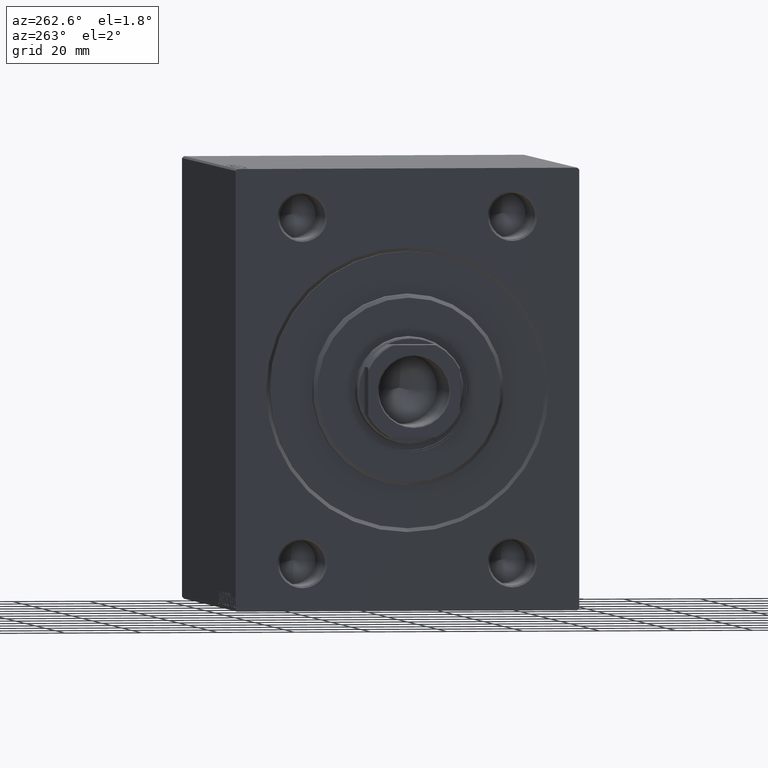
[diagram: clean part render]
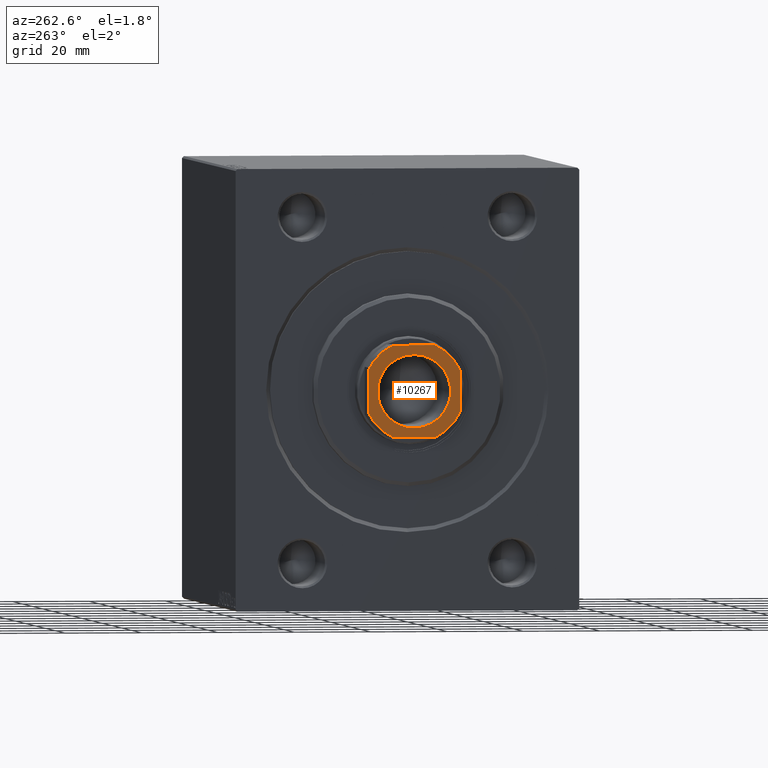
[diagram: same view with one face highlighted and labeled with its STEP entity id]
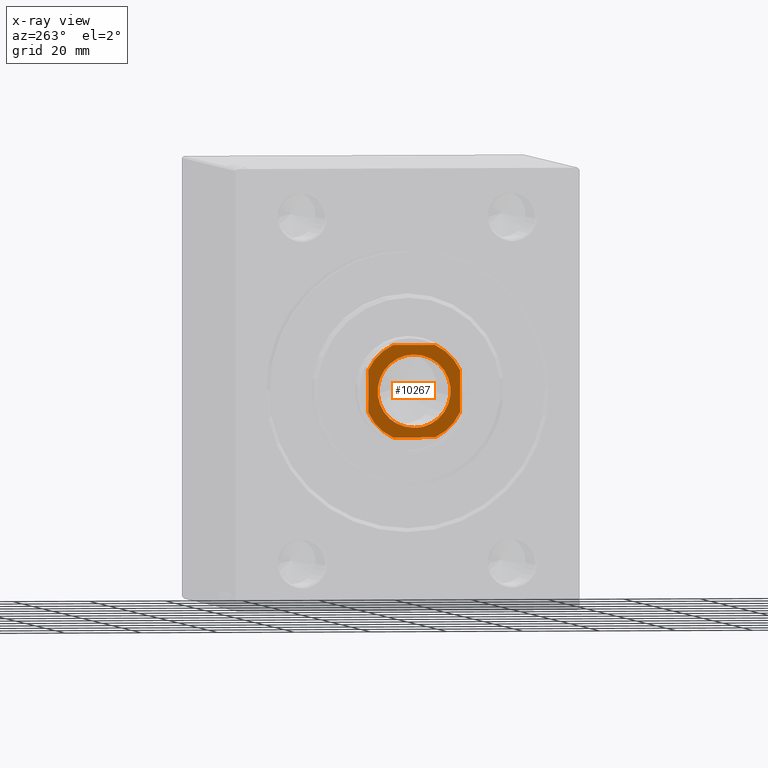
[diagram: x-ray of the same camera — body ghosted, the highlighted face saturated]
A machine part, auxiliary view. The second image highlights one B-rep face of the part: STEP entity #10267.
The next image is the same camera in x-ray: the body ghosted, the highlighted face saturated — about 0% of this face is hidden behind the body in this view.
In plain terms, the highlighted planar face has unit normal (-1, 0, 0).
Its self-contained STEP definition (entity closure, byte-faithful):
#175 = VERTEX_POINT ( 'NONE', #25458 ) ;
#362 = EDGE_CURVE ( 'NONE', #15461, #9041, #7316, .T. ) ;
#371 = DIRECTION ( 'NONE',  ( -0.000000000000000000, 0.000000000000000000, 1.000000000000000000 ) ) ;
#511 = CIRCLE ( 'NONE', #25501, 13.20000000000000107 ) ;
#1007 = EDGE_CURVE ( 'NONE', #21035, #15361, #22891, .T. ) ;
#1114 = CARTESIAN_POINT ( 'NONE',  ( 5.499090833947013479, 11.99999999999999645, 104.0000000000000142 ) ) ;
#2367 = CIRCLE ( 'NONE', #32331, 13.20000000000002238 ) ;
#2435 = VERTEX_POINT ( 'NONE', #8173 ) ;
#2909 = VERTEX_POINT ( 'NONE', #19532 ) ;
#4048 = CARTESIAN_POINT ( 'NONE',  ( -12.00000000000000355, 11.99999999999999645, 104.0000000000000142 ) ) ;
#4295 = EDGE_CURVE ( 'NONE', #38079, #21072, #21712, .T. ) ;
#4955 = CARTESIAN_POINT ( 'NONE',  ( -11.99999999999999822, -12.00000000000000355, 104.0000000000000142 ) ) ;
#5530 = CIRCLE ( 'NONE', #40468, 13.19999999999999929 ) ;
#7316 = LINE ( 'NONE', #11108, #12846 ) ;
#7362 = LINE ( 'NONE', #20988, #32412 ) ;
#7604 = CIRCLE ( 'NONE', #32570, 13.20000000000002238 ) ;
#8030 = DIRECTION ( 'NONE',  ( -0.000000000000000000, 0.000000000000000000, 1.000000000000000000 ) ) ;
#8071 = VERTEX_POINT ( 'NONE', #38842 ) ;
#8173 = CARTESIAN_POINT ( 'NONE',  ( 11.99999999999999645, 5.499090833947010815, 104.0000000000000142 ) ) ;
#8699 = VECTOR ( 'NONE', #15009, 1000.000000000000000 ) ;
#8838 = DIRECTION ( 'NONE',  ( 1.000000000000000000, 0.000000000000000000, 0.000000000000000000 ) ) ;
#9041 = VERTEX_POINT ( 'NONE', #41815 ) ;
#9348 = DIRECTION ( 'NONE',  ( 0.000000000000000000, -0.000000000000000000, -1.000000000000000000 ) ) ;
#10267 = ADVANCED_FACE ( 'NONE', ( #21155, #41940 ), #14907, .T. ) ;
#10705 = EDGE_CURVE ( 'NONE', #175, #2435, #7362, .T. ) ;
#11108 = CARTESIAN_POINT ( 'NONE',  ( -12.00000000000000355, 11.99999999999999645, 104.0000000000000142 ) ) ;
#12635 = DIRECTION ( 'NONE',  ( -0.000000000000000000, 0.000000000000000000, 1.000000000000000000 ) ) ;
#12846 = VECTOR ( 'NONE', #31429, 1000.000000000000000 ) ;
#13876 = DIRECTION ( 'NONE',  ( 0.000000000000000000, -0.000000000000000000, -1.000000000000000000 ) ) ;
#14004 = CARTESIAN_POINT ( 'NONE',  ( 9.550000000000002487, 0.000000000000000000, 104.0000000000000142 ) ) ;
#14017 = CARTESIAN_POINT ( 'NONE',  ( 0.000000000000000000, 0.000000000000000000, 104.0000000000000142 ) ) ;
#14771 = DIRECTION ( 'NONE',  ( 1.000000000000000000, 0.000000000000000000, 0.000000000000000000 ) ) ;
#14907 = PLANE ( 'NONE',  #22538 ) ;
#14950 = CARTESIAN_POINT ( 'NONE',  ( 0.000000000000000000, 0.000000000000000000, 104.0000000000000142 ) ) ;
#15009 = DIRECTION ( 'NONE',  ( 2.168404344971008868E-16, -1.000000000000000000, 0.000000000000000000 ) ) ;
#15361 = VERTEX_POINT ( 'NONE', #40433 ) ;
#15461 = VERTEX_POINT ( 'NONE', #1114 ) ;
#15631 = CIRCLE ( 'NONE', #25619, 9.550000000000002487 ) ;
#15711 = EDGE_LOOP ( 'NONE', ( #22678, #23533, #18152, #40513, #41071, #20611, #25108, #42891 ) ) ;
#17520 = EDGE_CURVE ( 'NONE', #21072, #8071, #7604, .T. ) ;
#18152 = ORIENTED_EDGE ( 'NONE', *, *, #362, .T. ) ;
#18862 = EDGE_CURVE ( 'NONE', #2909, #175, #511, .T. ) ;
#19195 = EDGE_CURVE ( 'NONE', #2435, #15461, #5530, .T. ) ;
#19532 = CARTESIAN_POINT ( 'NONE',  ( 5.499090833947004597, -12.00000000000000355, 104.0000000000000142 ) ) ;
#19991 = CARTESIAN_POINT ( 'NONE',  ( -12.00000000000000178, 5.499090833947057000, 104.0000000000000142 ) ) ;
#20611 = ORIENTED_EDGE ( 'NONE', *, *, #17520, .T. ) ;
#20988 = CARTESIAN_POINT ( 'NONE',  ( 11.99999999999999645, 11.99999999999999645, 104.0000000000000142 ) ) ;
#21035 = VERTEX_POINT ( 'NONE', #14004 ) ;
#21072 = VERTEX_POINT ( 'NONE', #29767 ) ;
#21155 = FACE_BOUND ( 'NONE', #33526, .T. ) ;
#21712 = LINE ( 'NONE', #4048, #8699 ) ;
#22538 = AXIS2_PLACEMENT_3D ( 'NONE', #14017, #371, #37896 ) ;
#22678 = ORIENTED_EDGE ( 'NONE', *, *, #10705, .T. ) ;
#22891 = CIRCLE ( 'NONE', #37821, 9.550000000000002487 ) ;
#23533 = ORIENTED_EDGE ( 'NONE', *, *, #19195, .T. ) ;
#24363 = CARTESIAN_POINT ( 'NONE',  ( 0.000000000000000000, 0.000000000000000000, 104.0000000000000142 ) ) ;
#24500 = ORIENTED_EDGE ( 'NONE', *, *, #28585, .T. ) ;
#25108 = ORIENTED_EDGE ( 'NONE', *, *, #37680, .T. ) ;
#25458 = CARTESIAN_POINT ( 'NONE',  ( 12.00000000000000000, -5.499090833947013479, 104.0000000000000142 ) ) ;
#25501 = AXIS2_PLACEMENT_3D ( 'NONE', #29274, #36413, #42697 ) ;
#25619 = AXIS2_PLACEMENT_3D ( 'NONE', #24363, #13876, #14771 ) ;
#27900 = DIRECTION ( 'NONE',  ( 1.000000000000000000, 0.000000000000000000, 0.000000000000000000 ) ) ;
#28585 = EDGE_CURVE ( 'NONE', #15361, #21035, #15631, .T. ) ;
#28852 = LINE ( 'NONE', #4955, #32978 ) ;
#29194 = DIRECTION ( 'NONE',  ( 1.000000000000000000, 0.000000000000000000, 0.000000000000000000 ) ) ;
#29245 = CARTESIAN_POINT ( 'NONE',  ( 0.000000000000000000, 0.000000000000000000, 104.0000000000000142 ) ) ;
#29274 = CARTESIAN_POINT ( 'NONE',  ( 0.000000000000000000, 0.000000000000000000, 104.0000000000000142 ) ) ;
#29767 = CARTESIAN_POINT ( 'NONE',  ( -12.00000000000000000, -5.499090833947057888, 104.0000000000000142 ) ) ;
#30321 = DIRECTION ( 'NONE',  ( 1.000000000000000000, 0.000000000000000000, 0.000000000000000000 ) ) ;
#31429 = DIRECTION ( 'NONE',  ( -1.000000000000000000, -0.000000000000000000, -0.000000000000000000 ) ) ;
#32331 = AXIS2_PLACEMENT_3D ( 'NONE', #41721, #42831, #29194 ) ;
#32412 = VECTOR ( 'NONE', #34607, 1000.000000000000000 ) ;
#32414 = DIRECTION ( 'NONE',  ( 1.000000000000000000, 0.000000000000000000, 0.000000000000000000 ) ) ;
#32570 = AXIS2_PLACEMENT_3D ( 'NONE', #43021, #12635, #8838 ) ;
#32978 = VECTOR ( 'NONE', #32414, 1000.000000000000000 ) ;
#33526 = EDGE_LOOP ( 'NONE', ( #41676, #24500 ) ) ;
#34607 = DIRECTION ( 'NONE',  ( -2.168404344971008868E-16, 1.000000000000000000, -0.000000000000000000 ) ) ;
#36413 = DIRECTION ( 'NONE',  ( -0.000000000000000000, 0.000000000000000000, 1.000000000000000000 ) ) ;
#37680 = EDGE_CURVE ( 'NONE', #8071, #2909, #28852, .T. ) ;
#37821 = AXIS2_PLACEMENT_3D ( 'NONE', #29245, #9348, #30321 ) ;
#37896 = DIRECTION ( 'NONE',  ( 1.000000000000000000, 0.000000000000000000, 0.000000000000000000 ) ) ;
#38079 = VERTEX_POINT ( 'NONE', #19991 ) ;
#38842 = CARTESIAN_POINT ( 'NONE',  ( -5.499090833947052559, -12.00000000000000355, 104.0000000000000142 ) ) ;
#40031 = EDGE_CURVE ( 'NONE', #9041, #38079, #2367, .T. ) ;
#40433 = CARTESIAN_POINT ( 'NONE',  ( -9.550000000000002487, 1.169537693185722558E-15, 104.0000000000000142 ) ) ;
#40468 = AXIS2_PLACEMENT_3D ( 'NONE', #14950, #8030, #27900 ) ;
#40513 = ORIENTED_EDGE ( 'NONE', *, *, #40031, .T. ) ;
#41071 = ORIENTED_EDGE ( 'NONE', *, *, #4295, .T. ) ;
#41676 = ORIENTED_EDGE ( 'NONE', *, *, #1007, .T. ) ;
#41721 = CARTESIAN_POINT ( 'NONE',  ( 0.000000000000000000, 0.000000000000000000, 104.0000000000000142 ) ) ;
#41815 = CARTESIAN_POINT ( 'NONE',  ( -5.499090833947067658, 11.99999999999999645, 104.0000000000000142 ) ) ;
#41940 = FACE_OUTER_BOUND ( 'NONE', #15711, .T. ) ;
#42697 = DIRECTION ( 'NONE',  ( 1.000000000000000000, 0.000000000000000000, 0.000000000000000000 ) ) ;
#42831 = DIRECTION ( 'NONE',  ( -0.000000000000000000, 0.000000000000000000, 1.000000000000000000 ) ) ;
#42891 = ORIENTED_EDGE ( 'NONE', *, *, #18862, .T. ) ;
#43021 = CARTESIAN_POINT ( 'NONE',  ( 0.000000000000000000, 0.000000000000000000, 104.0000000000000142 ) ) ;